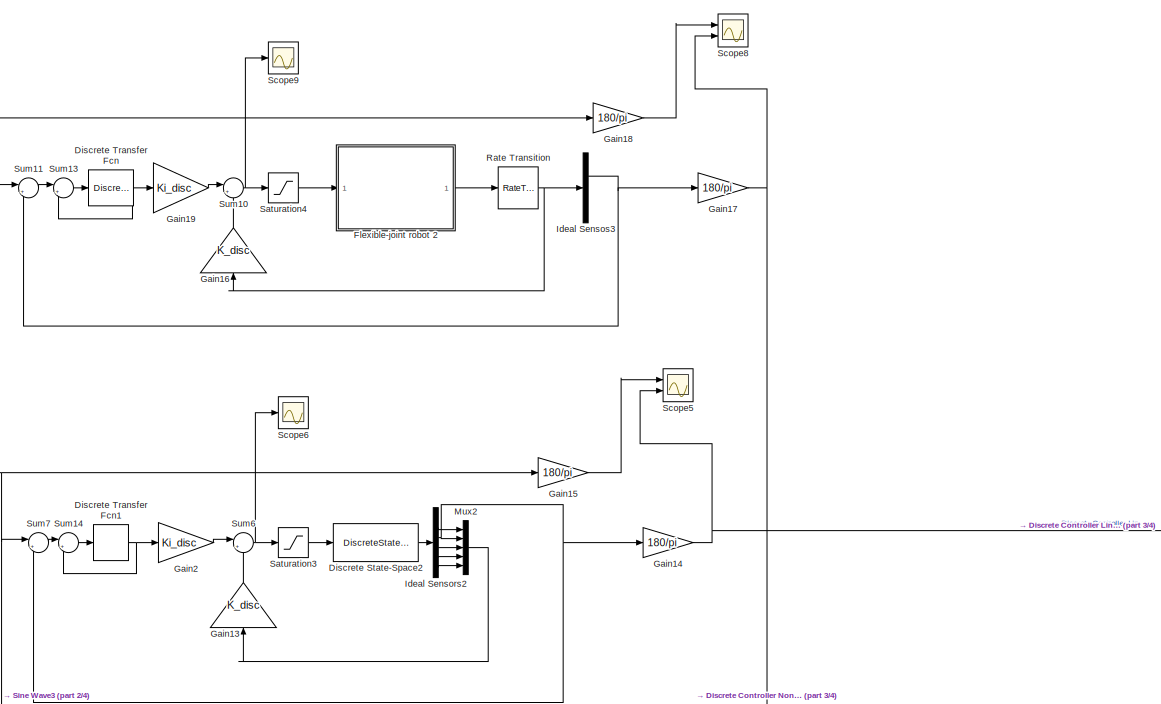
[diagram: root canvas - part 1/4, top center region]
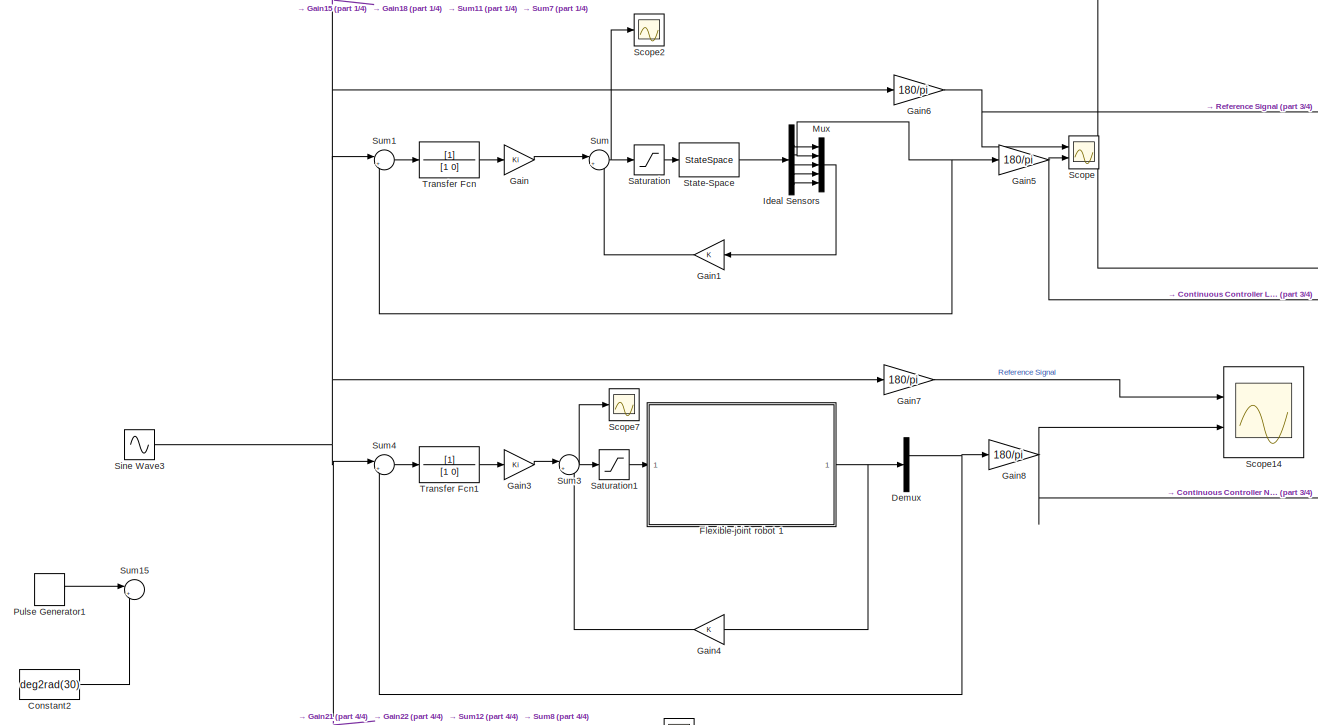
[diagram: root canvas - part 2/4, middle left region]
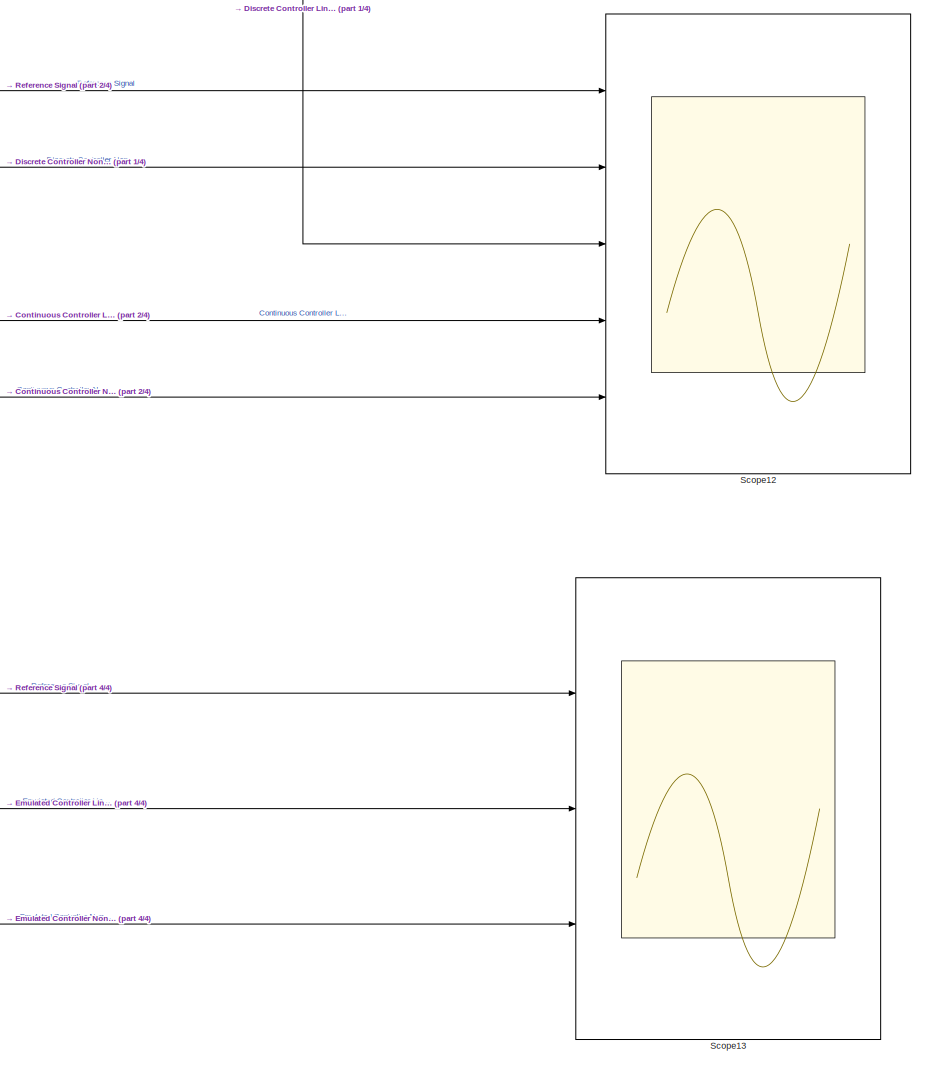
[diagram: root canvas - part 3/4, middle right region]
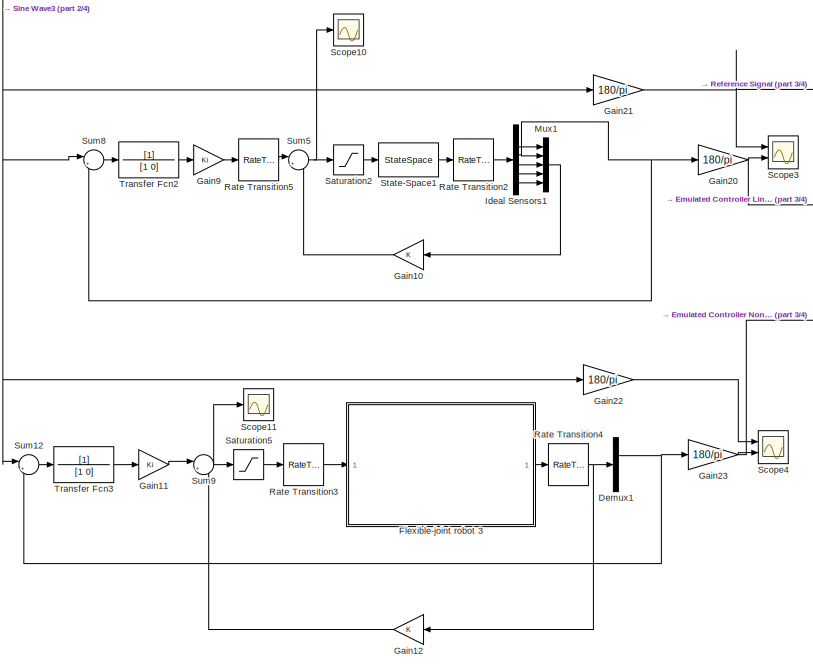
[diagram: root canvas - part 4/4, bottom left region]
MODEL slx_119fe302a54a
KIND model
CONFIG AbsTol = auto
CONFIG EnableMultiTasking = off
CONFIG FixedStep = auto
CONFIG MaxStep = auto
CONFIG MinStep = auto
CONFIG RelTol = 1e-3
CONFIG SampleTimeConstraint = Unconstrained
CONFIG SolverName = VariableStepAuto
CONFIG StartTime = 0.0
CONFIG StopTime = 30
BLOCK [Constant] Constant2
  Value = deg2rad(30)
BLOCK [Demux] Demux
  Outputs = 5
  Ports = [1, 5]
BLOCK [Demux] Demux1
  Outputs = 5
  Ports = [1, 5]
BLOCK [DiscreteStateSpace] Discrete State-Space2
  A = Phia
  B = Gama
  C = eye(6)
  D = zeros(6,1)
  SampleTime = T
BLOCK [DiscreteTransferFcn] Discrete Transfer Fcn
  Denominator = [1 0]
  InputPortMap = u0
  Ports = [1, 1]
BLOCK [DiscreteTransferFcn] Discrete Transfer Fcn1
  Denominator = [1 0]
  InputPortMap = u0
  Ports = [1, 1]
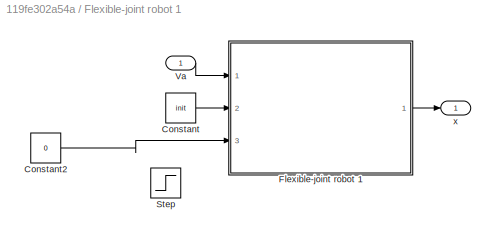
BLOCK [SubSystem] Flexible-joint robot 1
  Ports = [1, 1]
  RequestExecContextInheritance = off
BLOCK [Constant] Flexible-joint robot 1/Constant
  Value = init
BLOCK [Constant] Flexible-joint robot 1/Constant2
  Value = 0
BLOCK [ModelReference] Flexible-joint robot 1/Flexible-joint robot 1
  CopyOfModelProtected = on
  ModelNameDialog = Flexible_joint_robot_1
  ModelReferenceVersion = 1.65
  Ports = [3, 1]
BLOCK [Step] Flexible-joint robot 1/Step
  Before = 0.05
  SampleTime = 0
  Time = 2
BLOCK [Inport] Flexible-joint robot 1/Va
BLOCK [Outport] Flexible-joint robot 1/x
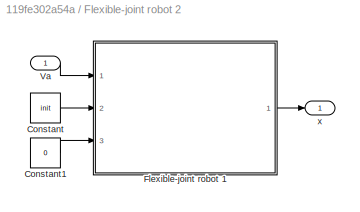
BLOCK [SubSystem] Flexible-joint robot 2
  Ports = [1, 1]
  RequestExecContextInheritance = off
BLOCK [Constant] Flexible-joint robot 2/Constant
  Value = init
BLOCK [Constant] Flexible-joint robot 2/Constant1
  Value = 0
BLOCK [ModelReference] Flexible-joint robot 2/Flexible-joint robot 1
  CopyOfModelProtected = on
  ModelNameDialog = Flexible_joint_robot_1
  ModelReferenceVersion = 1.65
  Ports = [3, 1]
BLOCK [Inport] Flexible-joint robot 2/Va
BLOCK [Outport] Flexible-joint robot 2/x
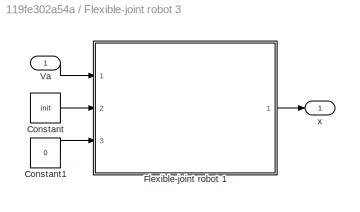
BLOCK [SubSystem] Flexible-joint robot 3
  Ports = [1, 1]
  RequestExecContextInheritance = off
BLOCK [Constant] Flexible-joint robot 3/Constant
  Value = init
BLOCK [Constant] Flexible-joint robot 3/Constant1
  Value = 0
BLOCK [ModelReference] Flexible-joint robot 3/Flexible-joint robot 1
  CopyOfModelProtected = on
  ModelNameDialog = Flexible_joint_robot_1
  ModelReferenceVersion = 1.65
  Ports = [3, 1]
BLOCK [Inport] Flexible-joint robot 3/Va
BLOCK [Outport] Flexible-joint robot 3/x
BLOCK [Gain] Gain
  Gain = Ki
  Multiplication = Matrix(K*u)
BLOCK [Gain] Gain1
  Gain = K
  Multiplication = Matrix(K*u)
  NameLocation = top
BLOCK [Gain] Gain10
  Gain = K
  Multiplication = Matrix(K*u)
  NameLocation = top
BLOCK [Gain] Gain11
  Gain = Ki
  Multiplication = Matrix(K*u)
BLOCK [Gain] Gain12
  Gain = K
  Multiplication = Matrix(K*u)
BLOCK [Gain] Gain13
  Gain = K_disc
  Multiplication = Matrix(K*u)
  NameLocation = right
BLOCK [Gain] Gain14
  Gain = 180/pi
BLOCK [Gain] Gain15
  Gain = 180/pi
BLOCK [Gain] Gain16
  Gain = K_disc
  Multiplication = Matrix(K*u)
  NameLocation = right
BLOCK [Gain] Gain17
  Gain = 180/pi
BLOCK [Gain] Gain18
  Gain = 180/pi
BLOCK [Gain] Gain19
  Gain = Ki_disc
  Multiplication = Matrix(K*u)
BLOCK [Gain] Gain2
  Gain = Ki_disc
  Multiplication = Matrix(K*u)
BLOCK [Gain] Gain20
  Gain = 180/pi
BLOCK [Gain] Gain21
  Gain = 180/pi
BLOCK [Gain] Gain22
  Gain = 180/pi
BLOCK [Gain] Gain23
  Gain = 180/pi
BLOCK [Gain] Gain3
  Gain = Ki
  Multiplication = Matrix(K*u)
BLOCK [Gain] Gain4
  Gain = K
  Multiplication = Matrix(K*u)
BLOCK [Gain] Gain5
  Gain = 180/pi
BLOCK [Gain] Gain6
  Gain = 180/pi
BLOCK [Gain] Gain7
  Gain = 180/pi
BLOCK [Gain] Gain8
  Gain = 180/pi
BLOCK [Gain] Gain9
  Gain = Ki
  Multiplication = Matrix(K*u)
BLOCK [Demux] Ideal Sensors
  Outputs = 6
  Ports = [1, 6]
BLOCK [Demux] Ideal Sensors1
  Outputs = 6
  Ports = [1, 6]
BLOCK [Demux] Ideal Sensors2
  Outputs = 6
  Ports = [1, 6]
BLOCK [Demux] Ideal Sensos3
  Outputs = 5
  Ports = [1, 5]
BLOCK [Mux] Mux
  DisplayOption = bar
  Inputs = 5
  Ports = [5, 1]
BLOCK [Mux] Mux1
  DisplayOption = bar
  Inputs = 5
  Ports = [5, 1]
BLOCK [Mux] Mux2
  DisplayOption = bar
  Inputs = 5
  Ports = [5, 1]
BLOCK [DiscretePulseGenerator] Pulse Generator1
  Amplitude = deg2rad(30)
  Period = 5
  Ports = [0, 1]
  PulseType = Time based
  PulseWidth = 50
BLOCK [RateTransition] Rate Transition
  OutPortSampleTime = T
BLOCK [RateTransition] Rate Transition2
  OutPortSampleTime = T
BLOCK [RateTransition] Rate Transition3
  OutPortSampleTime = T
BLOCK [RateTransition] Rate Transition4
  OutPortSampleTime = T
BLOCK [RateTransition] Rate Transition5
  OutPortSampleTime = T
BLOCK [Saturate] Saturation
  LowerLimit = -6
  UpperLimit = 6
BLOCK [Saturate] Saturation1
  LowerLimit = -6
  UpperLimit = 6
BLOCK [Saturate] Saturation2
  LowerLimit = -6
  UpperLimit = 6
BLOCK [Saturate] Saturation3
  LowerLimit = -6
  UpperLimit = 6
BLOCK [Saturate] Saturation4
  LowerLimit = -6
  UpperLimit = 6
BLOCK [Saturate] Saturation5
  LowerLimit = -6
  UpperLimit = 6
BLOCK [Scope] Scope
  Floating = off
  NumInputPorts = 2
  Ports = [2]
  ScopeSpecificationString = Simulink.scopes.TimeScopeBlockCfg('CurrentConfiguration', extmgr.ConfigurationSet(extmgr.Configuration('Core','General UI',true),extmgr.Configuration('Core','Source UI',true),extmgr.Configuration('Sources','WiredSimulink',true),extmgr.Configuration('Visuals','Time Domain',true,'SerializedDisplays',{struct('MinYLimReal','-7.50021','MaxYLimReal','67.50187','YLabelReal','','MinYLimMag','0.00000','Max...<+1449ch>
BLOCK [Scope] Scope10
  Floating = off
  NumInputPorts = 1
  Ports = [1]
  ScopeSpecificationString = Simulink.scopes.TimeScopeBlockCfg('CurrentConfiguration', extmgr.ConfigurationSet(extmgr.Configuration('Core','General UI',true),extmgr.Configuration('Core','Source UI',true),extmgr.Configuration('Sources','WiredSimulink',true,'DataLoggingVariableName','ScopeData6'),extmgr.Configuration('Visuals','Time Domain',true,'SerializedDisplays',{struct('MinYLimReal','-1.62935','MaxYLimReal','3.45392','YLab...<+1362ch>
BLOCK [Scope] Scope11
  Floating = off
  NumInputPorts = 1
  Ports = [1]
  ScopeSpecificationString = Simulink.scopes.TimeScopeBlockCfg('CurrentConfiguration', extmgr.ConfigurationSet(extmgr.Configuration('Core','General UI',true),extmgr.Configuration('Core','Source UI',true),extmgr.Configuration('Sources','WiredSimulink',true,'DataLoggingVariableName','ScopeData7'),extmgr.Configuration('Visuals','Time Domain',true,'SerializedDisplays',{struct('MinYLimReal','-2.30386','MaxYLimReal','5.1415','YLabe...<+1359ch>
BLOCK [Scope] Scope12
  Floating = off
  NumInputPorts = 5
  Ports = [5]
  ScopeSpecificationString = Simulink.scopes.TimeScopeBlockCfg('CurrentConfiguration', extmgr.ConfigurationSet(extmgr.Configuration('Core','General UI',true,'FigureColor',[1 1 1]),extmgr.Configuration('Core','Source UI',true),extmgr.Configuration('Sources','WiredSimulink',true,'DataLoggingVariableName','ScopeData10'),extmgr.Configuration('Visuals','Time Domain',true,'SerializedDisplays',{struct('MinYLimReal','28','MaxYLimReal...<+2572ch>
BLOCK [Scope] Scope13
  Floating = off
  NumInputPorts = 3
  Ports = [3]
  ScopeSpecificationString = Simulink.scopes.TimeScopeBlockCfg('CurrentConfiguration', extmgr.ConfigurationSet(extmgr.Configuration('Core','General UI',true,'FigureColor',[1 1 1]),extmgr.Configuration('Core','Source UI',true),extmgr.Configuration('Sources','WiredSimulink',true,'DataLoggingVariableName','ScopeData11'),extmgr.Configuration('Visuals','Time Domain',true,'SerializedDisplays',{struct('MinYLimReal','18','MaxYLimReal...<+2435ch>
BLOCK [Scope] Scope14
  Floating = off
  NumInputPorts = 2
  Ports = [2]
  ScopeSpecificationString = Simulink.scopes.TimeScopeBlockCfg('CurrentConfiguration', extmgr.ConfigurationSet(extmgr.Configuration('Core','General UI',true,'FigureColor',[1 1 1]),extmgr.Configuration('Core','Source UI',true),extmgr.Configuration('Sources','WiredSimulink',true,'DataLoggingVariableName','ScopeData1'),extmgr.Configuration('Visuals','Time Domain',true,'SerializedDisplays',{struct('MinYLimReal','-37.5','MaxYLimRe...<+2462ch>
BLOCK [Scope] Scope2
  Floating = off
  NumInputPorts = 1
  Ports = [1]
  ScopeSpecificationString = Simulink.scopes.TimeScopeBlockCfg('CurrentConfiguration', extmgr.ConfigurationSet(extmgr.Configuration('Core','General UI',true),extmgr.Configuration('Core','Source UI',true),extmgr.Configuration('Sources','WiredSimulink',true,'DataLoggingVariableName','ScopeData1'),extmgr.Configuration('Visuals','Time Domain',true,'SerializedDisplays',{struct('MinYLimReal','-1.62723','MaxYLimReal','3.45235','YLab...<+1362ch>
BLOCK [Scope] Scope3
  Floating = off
  NumInputPorts = 2
  Ports = [2]
  ScopeSpecificationString = Simulink.scopes.TimeScopeBlockCfg('CurrentConfiguration', extmgr.ConfigurationSet(extmgr.Configuration('Core','General UI',true),extmgr.Configuration('Core','Source UI',true),extmgr.Configuration('Sources','WiredSimulink',true,'DataLoggingVariableName','ScopeData8'),extmgr.Configuration('Visuals','Time Domain',true,'SerializedDisplays',{struct('MinYLimReal','-159.40229','MaxYLimReal','242.04274','...<+1496ch>
BLOCK [Scope] Scope4
  Floating = off
  NumInputPorts = 2
  Ports = [2]
  ScopeSpecificationString = Simulink.scopes.TimeScopeBlockCfg('CurrentConfiguration', extmgr.ConfigurationSet(extmgr.Configuration('Core','General UI',true),extmgr.Configuration('Core','Source UI',true),extmgr.Configuration('Sources','WiredSimulink',true,'DataLoggingVariableName','ScopeData9'),extmgr.Configuration('Visuals','Time Domain',true,'SerializedDisplays',{struct('MinYLimReal','-150.4878','MaxYLimReal','235.74536','Y...<+1491ch>
BLOCK [Scope] Scope5
  Floating = off
  NumInputPorts = 2
  Ports = [2]
  ScopeSpecificationString = Simulink.scopes.TimeScopeBlockCfg('CurrentConfiguration', extmgr.ConfigurationSet(extmgr.Configuration('Core','General UI',true),extmgr.Configuration('Core','Source UI',true),extmgr.Configuration('Sources','WiredSimulink',true,'DataLoggingVariableName','ScopeData1'),extmgr.Configuration('Visuals','Time Domain',true,'SerializedDisplays',{struct('MinYLimReal','29.11348','MaxYLimReal','61.26478','YLa...<+1478ch>
BLOCK [Scope] Scope6
  Floating = off
  NumInputPorts = 1
  Ports = [1]
  ScopeSpecificationString = Simulink.scopes.TimeScopeBlockCfg('CurrentConfiguration', extmgr.ConfigurationSet(extmgr.Configuration('Core','General UI',true),extmgr.Configuration('Core','Source UI',true),extmgr.Configuration('Sources','WiredSimulink',true,'DataLoggingVariableName','ScopeData2'),extmgr.Configuration('Visuals','Time Domain',true,'SerializedDisplays',{struct('MinYLimReal','-1.62938','MaxYLimReal','3.45398','YLab...<+1363ch>
BLOCK [Scope] Scope7
  Floating = off
  NumInputPorts = 1
  Ports = [1]
  ScopeSpecificationString = Simulink.scopes.TimeScopeBlockCfg('CurrentConfiguration', extmgr.ConfigurationSet(extmgr.Configuration('Core','General UI',true),extmgr.Configuration('Core','Source UI',true),extmgr.Configuration('Sources','WiredSimulink',true,'DataLoggingVariableName','ScopeData3'),extmgr.Configuration('Visuals','Time Domain',true,'SerializedDisplays',{struct('MinYLimReal','-2.29965','MaxYLimReal','5.13676','YLab...<+1363ch>
BLOCK [Scope] Scope8
  Floating = off
  NumInputPorts = 2
  Ports = [2]
  ScopeSpecificationString = Simulink.scopes.TimeScopeBlockCfg('CurrentConfiguration', extmgr.ConfigurationSet(extmgr.Configuration('Core','General UI',true),extmgr.Configuration('Core','Source UI',true),extmgr.Configuration('Sources','WiredSimulink',true,'DataLoggingVariableName','ScopeData4'),extmgr.Configuration('Visuals','Time Domain',true,'SerializedDisplays',{struct('MinYLimReal','-7.50166','MaxYLimReal','67.51496','YLa...<+1479ch>
BLOCK [Scope] Scope9
  Floating = off
  NumInputPorts = 1
  Ports = [1]
  ScopeSpecificationString = Simulink.scopes.TimeScopeBlockCfg('CurrentConfiguration', extmgr.ConfigurationSet(extmgr.Configuration('Core','General UI',true),extmgr.Configuration('Core','Source UI',true),extmgr.Configuration('Sources','WiredSimulink',true,'DataLoggingVariableName','ScopeData5'),extmgr.Configuration('Visuals','Time Domain',true,'SerializedDisplays',{struct('MinYLimReal','-2.33631','MaxYLimReal','5.20919','YLab...<+1417ch>
BLOCK [Sin] Sine Wave3
  Amplitude = deg2rad(30)
  Frequency = w
  Phase = deg2rad(30)
  Ports = [0, 1]
  SampleTime = 0
BLOCK [StateSpace] State-Space
  A = A_aug
  B = B_aug
  C = eye(6)
  D = zeros(6,1)
  InitialCondition = 0
  Ports = [1, 1]
BLOCK [StateSpace] State-Space1
  A = A_aug
  B = B_aug
  C = eye(6)
  D = zeros(6,1)
  InitialCondition = 0
  Ports = [1, 1]
BLOCK [Sum] Sum
  Inputs = |+-
  Ports = [2, 1]
BLOCK [Sum] Sum1
  Inputs = |+-
  Ports = [2, 1]
BLOCK [Sum] Sum10
  Inputs = |+-
  Ports = [2, 1]
BLOCK [Sum] Sum11
  Inputs = |+-
  Ports = [2, 1]
BLOCK [Sum] Sum12
  Inputs = |+-
  Ports = [2, 1]
BLOCK [Sum] Sum13
  Inputs = |++
  Ports = [2, 1]
BLOCK [Sum] Sum14
  Inputs = |++
  Ports = [2, 1]
BLOCK [Sum] Sum15
  Inputs = |++
  Ports = [2, 1]
BLOCK [Sum] Sum3
  Inputs = |+-
  Ports = [2, 1]
BLOCK [Sum] Sum4
  Inputs = |+-
  Ports = [2, 1]
BLOCK [Sum] Sum5
  Inputs = |+-
  Ports = [2, 1]
BLOCK [Sum] Sum6
  Inputs = |+-
  Ports = [2, 1]
BLOCK [Sum] Sum7
  Inputs = |+-
  Ports = [2, 1]
BLOCK [Sum] Sum8
  Inputs = |+-
  Ports = [2, 1]
BLOCK [Sum] Sum9
  Inputs = |+-
  Ports = [2, 1]
BLOCK [TransferFcn] Transfer Fcn
  Denominator = [1 0]
BLOCK [TransferFcn] Transfer Fcn1
  Denominator = [1 0]
BLOCK [TransferFcn] Transfer Fcn2
  Denominator = [1 0]
BLOCK [TransferFcn] Transfer Fcn3
  Denominator = [1 0]
LINE Constant2:1 -> Sum15:2
NET Demux1:2 -> Gain23:1, Sum12:2
NET Demux:2 -> Gain8:1, Sum4:2
LINE Discrete State-Space2:1 -> Ideal Sensors2:1
NET Discrete Transfer Fcn1:1 -> Gain2:1, Sum14:2
NET Discrete Transfer Fcn:1 -> Gain19:1, Sum13:2
LINE Flexible-joint robot 1/Constant2:1 -> Flexible-joint robot 1/Flexible-joint robot 1:3
LINE Flexible-joint robot 1/Constant:1 -> Flexible-joint robot 1/Flexible-joint robot 1:2
LINE Flexible-joint robot 1/Flexible-joint robot 1:1 -> Flexible-joint robot 1/x:1
LINE Flexible-joint robot 1/Va:1 -> Flexible-joint robot 1/Flexible-joint robot 1:1
NET Flexible-joint robot 1:1 -> Demux:1, Gain4:1
LINE Flexible-joint robot 2/Constant1:1 -> Flexible-joint robot 2/Flexible-joint robot 1:3
LINE Flexible-joint robot 2/Constant:1 -> Flexible-joint robot 2/Flexible-joint robot 1:2
LINE Flexible-joint robot 2/Flexible-joint robot 1:1 -> Flexible-joint robot 2/x:1
LINE Flexible-joint robot 2/Va:1 -> Flexible-joint robot 2/Flexible-joint robot 1:1
LINE Flexible-joint robot 2:1 -> Rate Transition:1
LINE Flexible-joint robot 3/Constant1:1 -> Flexible-joint robot 3/Flexible-joint robot 1:3
LINE Flexible-joint robot 3/Constant:1 -> Flexible-joint robot 3/Flexible-joint robot 1:2
LINE Flexible-joint robot 3/Flexible-joint robot 1:1 -> Flexible-joint robot 3/x:1
LINE Flexible-joint robot 3/Va:1 -> Flexible-joint robot 3/Flexible-joint robot 1:1
LINE Flexible-joint robot 3:1 -> Rate Transition4:1
LINE Gain10:1 -> Sum5:2
LINE Gain11:1 -> Sum9:1
LINE Gain12:1 -> Sum9:2
LINE Gain13:1 -> Sum6:2
NET Gain14:1 -> Scope12:3, Scope5:2
LINE Gain15:1 -> Scope5:1
LINE Gain16:1 -> Sum10:2
NET Gain17:1 -> Scope12:2, Scope8:2
LINE Gain18:1 -> Scope8:1
LINE Gain19:1 -> Sum10:1
LINE Gain1:1 -> Sum:2
NET Gain20:1 -> Scope13:2, Scope3:2
NET Gain21:1 -> Scope13:1, Scope3:1
LINE Gain22:1 -> Scope4:1
NET Gain23:1 -> Scope13:3, Scope4:2
LINE Gain2:1 -> Sum6:1
LINE Gain3:1 -> Sum3:1
LINE Gain4:1 -> Sum3:2
NET Gain5:1 -> Scope12:4, Scope:2
NET Gain6:1 -> Scope12:1, Scope:1
LINE Gain7:1 -> Scope14:1
NET Gain8:1 -> Scope12:5, Scope14:2
LINE Gain9:1 -> Rate Transition5:1
LINE Gain:1 -> Sum:1
LINE Ideal Sensors1:2 -> Mux1:1
NET Ideal Sensors1:3 -> Gain20:1, Mux1:2, Sum8:2
LINE Ideal Sensors1:4 -> Mux1:3
LINE Ideal Sensors1:5 -> Mux1:4
LINE Ideal Sensors1:6 -> Mux1:5
LINE Ideal Sensors2:2 -> Mux2:1
NET Ideal Sensors2:3 -> Gain14:1, Mux2:2, Sum7:2
LINE Ideal Sensors2:4 -> Mux2:3
LINE Ideal Sensors2:5 -> Mux2:4
LINE Ideal Sensors2:6 -> Mux2:5
LINE Ideal Sensors:2 -> Mux:1
NET Ideal Sensors:3 -> Gain5:1, Mux:2, Sum1:2
LINE Ideal Sensors:4 -> Mux:3
LINE Ideal Sensors:5 -> Mux:4
LINE Ideal Sensors:6 -> Mux:5
NET Ideal Sensos3:2 -> Gain17:1, Sum11:2
LINE Mux1:1 -> Gain10:1
LINE Mux2:1 -> Gain13:1
LINE Mux:1 -> Gain1:1
LINE Pulse Generator1:1 -> Sum15:1
LINE Rate Transition2:1 -> Ideal Sensors1:1
LINE Rate Transition3:1 -> Flexible-joint robot 3:1
NET Rate Transition4:1 -> Demux1:1, Gain12:1
LINE Rate Transition5:1 -> Sum5:1
NET Rate Transition:1 -> Gain16:1, Ideal Sensos3:1
LINE Saturation1:1 -> Flexible-joint robot 1:1
LINE Saturation2:1 -> State-Space1:1
LINE Saturation3:1 -> Discrete State-Space2:1
LINE Saturation4:1 -> Flexible-joint robot 2:1
LINE Saturation5:1 -> Rate Transition3:1
LINE Saturation:1 -> State-Space:1
NET Sine Wave3:1 -> Gain15:1, Gain18:1, Gain21:1, Gain22:1, Gain6:1, Gain7:1, Sum11:1, Sum12:1, Sum1:1, Sum4:1, Sum7:1, Sum8:1
LINE State-Space1:1 -> Rate Transition2:1
LINE State-Space:1 -> Ideal Sensors:1
NET Sum10:1 -> Saturation4:1, Scope9:1
LINE Sum11:1 -> Sum13:1
LINE Sum12:1 -> Transfer Fcn3:1
LINE Sum13:1 -> Discrete Transfer Fcn:1
LINE Sum14:1 -> Discrete Transfer Fcn1:1
LINE Sum1:1 -> Transfer Fcn:1
NET Sum3:1 -> Saturation1:1, Scope7:1
LINE Sum4:1 -> Transfer Fcn1:1
NET Sum5:1 -> Saturation2:1, Scope10:1
NET Sum6:1 -> Saturation3:1, Scope6:1
LINE Sum7:1 -> Sum14:1
LINE Sum8:1 -> Transfer Fcn2:1
NET Sum9:1 -> Saturation5:1, Scope11:1
NET Sum:1 -> Saturation:1, Scope2:1
LINE Transfer Fcn1:1 -> Gain3:1
LINE Transfer Fcn2:1 -> Gain9:1
LINE Transfer Fcn3:1 -> Gain11:1
LINE Transfer Fcn:1 -> Gain:1
note: NET lines group one-source signal fan-out (src -> all destinations, sorted); 1:1 wires keep LINE
